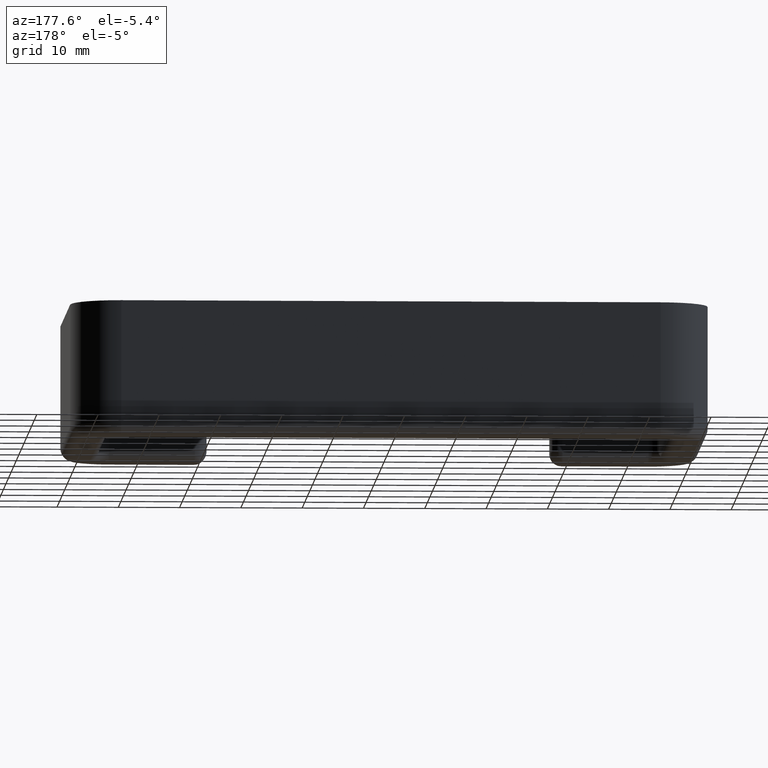
[diagram: clean part render]
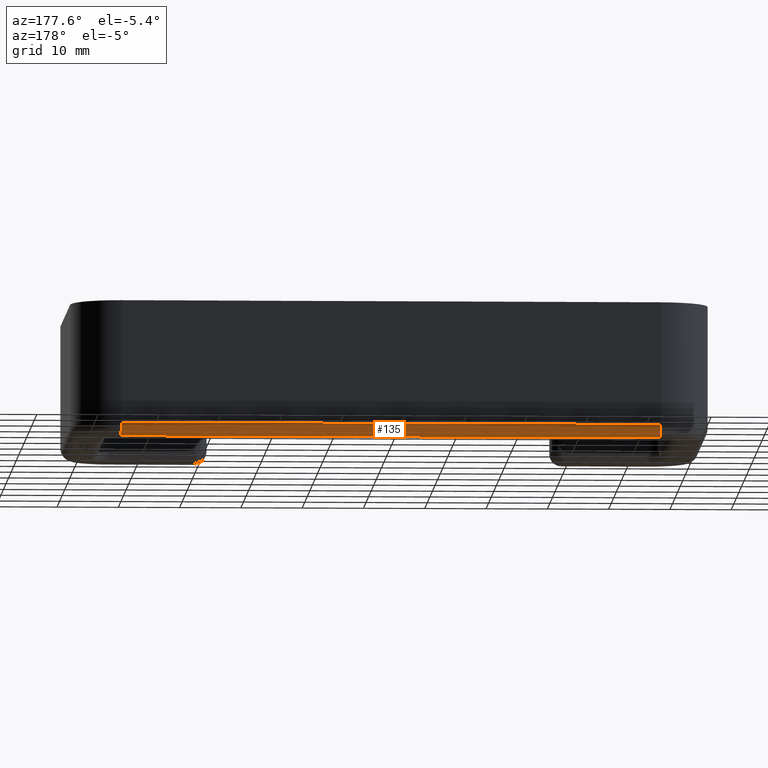
[diagram: same view with one face highlighted and labeled with its STEP entity id]
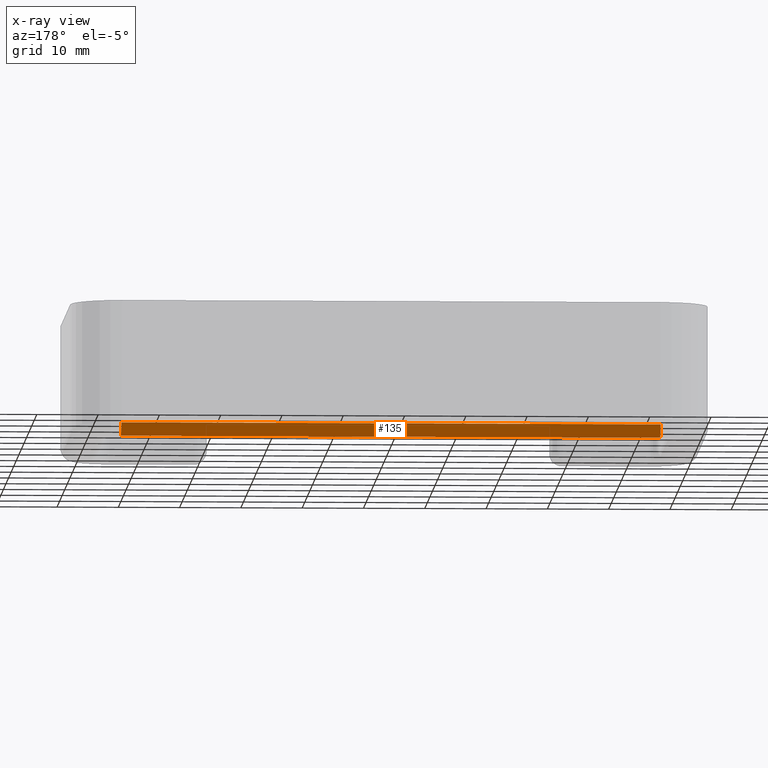
[diagram: x-ray of the same camera — body ghosted, the highlighted face saturated]
A machine part, auxiliary view. The second image highlights one B-rep face of the part: STEP entity #135.
The next image is the same camera in x-ray: the body ghosted, the highlighted face saturated — about 0% of this face is hidden behind the body in this view.
In plain terms, the highlighted cylindrical surface (edge-blend (fillet) strip) has radius 2 mm, axis along (-1, 0, 0).
Its self-contained STEP definition (entity closure, byte-faithful):
#135 = ADVANCED_FACE( '', ( #268 ), #269, .T. );
#268 = FACE_OUTER_BOUND( '', #411, .T. );
#269 = CYLINDRICAL_SURFACE( '', #412, 2.00000000000000 );
#411 = EDGE_LOOP( '', ( #922, #923, #924, #925 ) );
#412 = AXIS2_PLACEMENT_3D( '', #926, #927, #928 );
#922 = ORIENTED_EDGE( '', *, *, #1164, .T. );
#923 = ORIENTED_EDGE( '', *, *, #1099, .F. );
#924 = ORIENTED_EDGE( '', *, *, #1166, .F. );
#925 = ORIENTED_EDGE( '', *, *, #1131, .F. );
#926 = CARTESIAN_POINT( '', ( -44.0000000000000, 25.0000000000000, -20.0000000000000 ) );
#927 = DIRECTION( '', ( -1.00000000000000, 0.000000000000000, 0.000000000000000 ) );
#928 = DIRECTION( '', ( 0.000000000000000, 0.000000000000000, -1.00000000000000 ) );
#1099 = EDGE_CURVE( '', #1357, #1359, #1360, .T. );
#1131 = EDGE_CURVE( '', #1408, #1411, #1412, .F. );
#1164 = EDGE_CURVE( '', #1408, #1359, #1448, .T. );
#1166 = EDGE_CURVE( '', #1411, #1357, #1450, .T. );
#1357 = VERTEX_POINT( '', #1697 );
#1359 = VERTEX_POINT( '', #1699 );
#1360 = LINE( '', #1700, #1701 );
#1408 = VERTEX_POINT( '', #1771 );
#1411 = VERTEX_POINT( '', #1775 );
#1412 = LINE( '', #1776, #1777 );
#1448 = CIRCLE( '', #1836, 2.00000000000000 );
#1450 = CIRCLE( '', #1838, 2.00000000000000 );
#1697 = CARTESIAN_POINT( '', ( -44.0000000000000, 25.0000000000000, -22.0000000000000 ) );
#1699 = CARTESIAN_POINT( '', ( 44.0000000000000, 25.0000000000000, -22.0000000000000 ) );
#1700 = CARTESIAN_POINT( '', ( -44.0000000000000, 25.0000000000000, -22.0000000000000 ) );
#1701 = VECTOR( '', #2037, 1000.00000000000 );
#1771 = CARTESIAN_POINT( '', ( 44.0000000000000, 27.0000000000000, -20.0000000000000 ) );
#1775 = CARTESIAN_POINT( '', ( -44.0000000000000, 27.0000000000000, -20.0000000000000 ) );
#1776 = CARTESIAN_POINT( '', ( -44.0000000000000, 27.0000000000000, -20.0000000000000 ) );
#1777 = VECTOR( '', #2085, 1000.00000000000 );
#1836 = AXIS2_PLACEMENT_3D( '', #2136, #2137, #2138 );
#1838 = AXIS2_PLACEMENT_3D( '', #2142, #2143, #2144 );
#2037 = DIRECTION( '', ( 1.00000000000000, 0.000000000000000, 0.000000000000000 ) );
#2085 = DIRECTION( '', ( 1.00000000000000, 0.000000000000000, 0.000000000000000 ) );
#2136 = CARTESIAN_POINT( '', ( 44.0000000000000, 25.0000000000000, -20.0000000000000 ) );
#2137 = DIRECTION( '', ( -1.00000000000000, 0.000000000000000, 0.000000000000000 ) );
#2138 = DIRECTION( '', ( 0.000000000000000, 0.000000000000000, 1.00000000000000 ) );
#2142 = CARTESIAN_POINT( '', ( -44.0000000000000, 25.0000000000000, -20.0000000000000 ) );
#2143 = DIRECTION( '', ( -1.00000000000000, 0.000000000000000, 0.000000000000000 ) );
#2144 = DIRECTION( '', ( 0.000000000000000, 0.000000000000000, 1.00000000000000 ) );